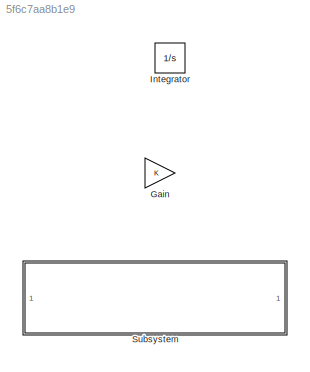
MODEL slx_5f6c7aa8b1e9
KIND model
CONFIG AbsTol = auto
CONFIG EnableMultiTasking = off
CONFIG FixedStep = auto
CONFIG MaxStep = auto
CONFIG MinStep = auto
CONFIG RelTol = 1e-3
CONFIG SampleTimeConstraint = Unconstrained
CONFIG SolverName = VariableStepAuto
CONFIG StartTime = 0.0
CONFIG StopTime = 10.0
BLOCK [Gain] Gain
BLOCK [Integrator] Integrator
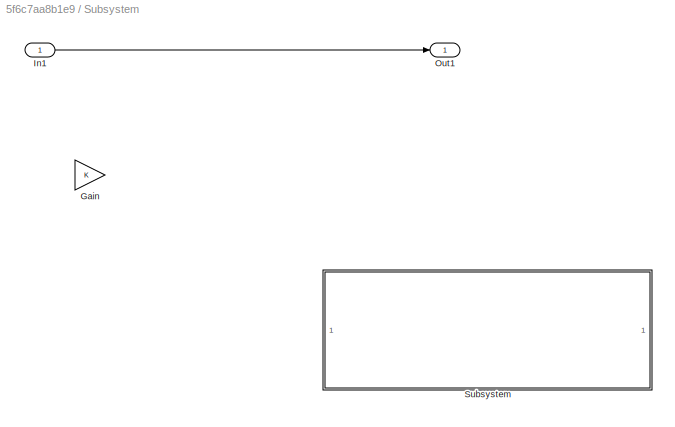
BLOCK [SubSystem] Subsystem
BLOCK [Gain] Subsystem/Gain
BLOCK [Inport] Subsystem/In1
BLOCK [Outport] Subsystem/Out1
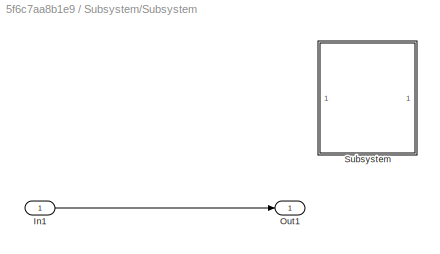
BLOCK [SubSystem] Subsystem/Subsystem
BLOCK [Inport] Subsystem/Subsystem/In1
BLOCK [Outport] Subsystem/Subsystem/Out1
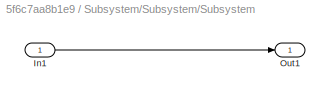
BLOCK [SubSystem] Subsystem/Subsystem/Subsystem
BLOCK [Inport] Subsystem/Subsystem/Subsystem/In1
BLOCK [Outport] Subsystem/Subsystem/Subsystem/Out1
LINE Subsystem/In1:1 -> Subsystem/Out1:1
LINE Subsystem/Subsystem/In1:1 -> Subsystem/Subsystem/Out1:1
LINE Subsystem/Subsystem/Subsystem/In1:1 -> Subsystem/Subsystem/Subsystem/Out1:1
